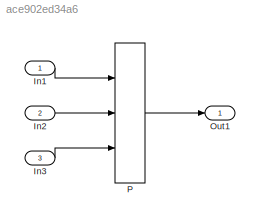
MODEL slx_ace902ed34a6
KIND model
CONFIG AbsTol = auto
CONFIG EnableMultiTasking = off
CONFIG FixedStep = auto
CONFIG MaxStep = auto
CONFIG MinStep = auto
CONFIG RelTol = 1e-3
CONFIG SampleTimeConstraint = Unconstrained
CONFIG Solver = FixedStepDiscrete
CONFIG SolverName = FixedStepDiscrete
CONFIG StartTime = 0.0
CONFIG StopTime = 10.0
WORKSPACE source: MAT-file member
WORKSPACE MCOS: class17 (value not decoded)
BLOCK [Inport] In1
  IconDisplay = Port number
  OutMax = 127
  OutMin = 0
  PortDimensions = 1
BLOCK [Inport] In2
  IconDisplay = Port number
  OutMax = 127
  OutMin = 0
  Port = 2
BLOCK [Inport] In3
  IconDisplay = Port number
  OutMax = 127
  OutMin = 0
  Port = 3
BLOCK [Outport] Out1
  IconDisplay = Port number
BLOCK [Lookup_n-D] P
  BreakpointsForDimension3 = [5, 7]
  BreakpointsSpecification = Even spacing
  DataSpecification = Lookup table object
  InternalRulePriority = Speed
  LookupTableObject = LUTObjLKnD18
  NumberOfTableDimensions = 3
  Ports = [3, 1]
  RndMeth = Simplest
  Table = reshape(repmat([4 5 6;16 19 20;10 18 23],1,2),[3,3,2])
LINE In1:1 -> P:1
LINE In2:1 -> P:2
LINE In3:1 -> P:3
LINE P:1 -> Out1:1
